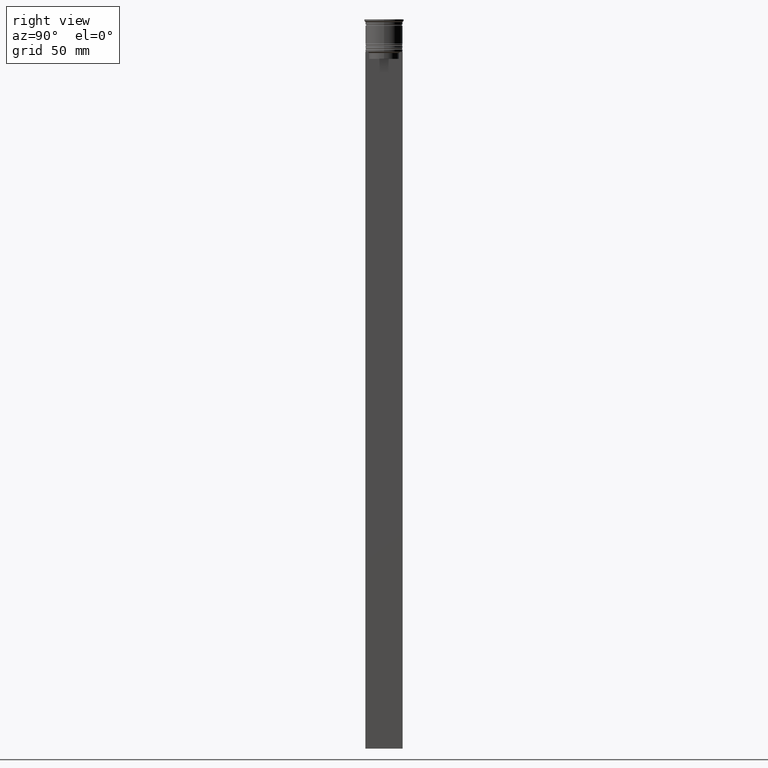
[diagram: clean part render]
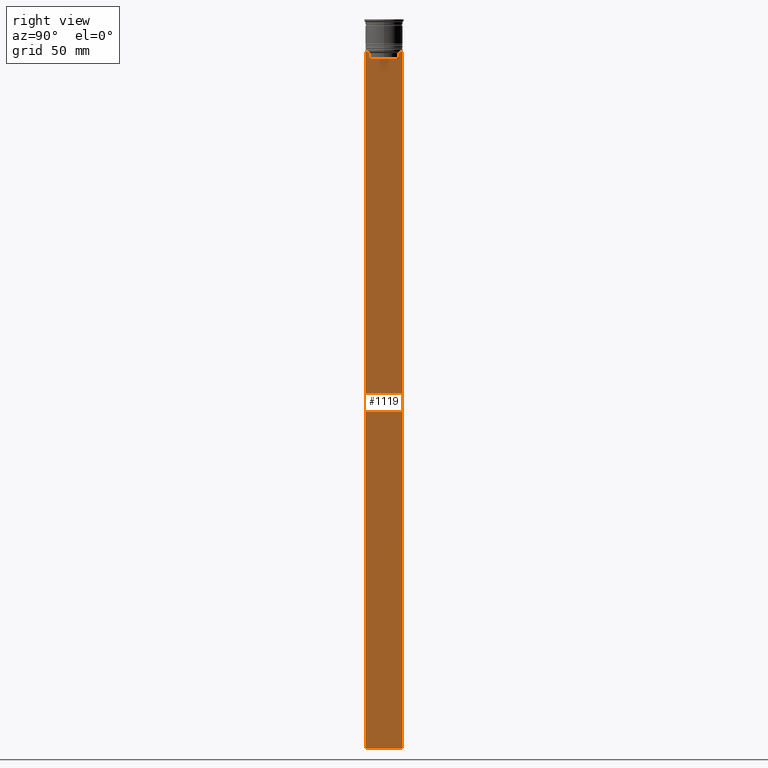
[diagram: same view with one face highlighted and labeled with its STEP entity id]
A machine part, right view. The second image highlights one B-rep face of the part: STEP entity #1119.
In plain terms, the highlighted planar face has unit normal (-1, 0, 0).
Its self-contained STEP definition (entity closure, byte-faithful):
#7 = DIRECTION ( 'NONE',  ( 0.000000000000000000, 1.000000000000000000, 0.000000000000000000 ) ) ;
#10 = DIRECTION ( 'NONE',  ( 0.000000000000000000, -1.000000000000000000, 0.000000000000000000 ) ) ;
#81 = DIRECTION ( 'NONE',  ( -0.000000000000000000, -0.000000000000000000, 1.000000000000000000 ) ) ;
#92 = VERTEX_POINT ( 'NONE', #2103 ) ;
#131 = CARTESIAN_POINT ( 'NONE',  ( 0.5000000000000001110, -8.000000000000003553, -14.00000000000000178 ) ) ;
#149 = LINE ( 'NONE', #2273, #801 ) ;
#206 = VERTEX_POINT ( 'NONE', #834 ) ;
#259 = EDGE_CURVE ( 'NONE', #1219, #950, #850, .T. ) ;
#279 = CARTESIAN_POINT ( 'NONE',  ( 0.5000000000000001110, 6.380438856379708312, -17.00000000000000000 ) ) ;
#289 = VERTEX_POINT ( 'NONE', #1675 ) ;
#337 = EDGE_CURVE ( 'NONE', #289, #206, #538, .T. ) ;
#358 = LINE ( 'NONE', #2466, #633 ) ;
#424 = CARTESIAN_POINT ( 'NONE',  ( 0.5000000000000001110, 7.999999999999996447, 2.031219541881394530 ) ) ;
#441 = VECTOR ( 'NONE', #707, 1000.000000000000000 ) ;
#468 = VECTOR ( 'NONE', #10, 1000.000000000000000 ) ;
#485 = CARTESIAN_POINT ( 'NONE',  ( 0.5000000000000001110, -6.380438856379708312, -14.50000000000000000 ) ) ;
#514 = VECTOR ( 'NONE', #7, 1000.000000000000000 ) ;
#527 = VERTEX_POINT ( 'NONE', #1619 ) ;
#531 = FACE_OUTER_BOUND ( 'NONE', #670, .T. ) ;
#538 = LINE ( 'NONE', #131, #752 ) ;
#540 = CARTESIAN_POINT ( 'NONE',  ( 0.5000000000000001110, -8.000000000000003553, -14.00000000000000178 ) ) ;
#605 = ORIENTED_EDGE ( 'NONE', *, *, #259, .T. ) ;
#633 = VECTOR ( 'NONE', #749, 1000.000000000000000 ) ;
#662 = EDGE_CURVE ( 'NONE', #92, #1219, #358, .T. ) ;
#670 = EDGE_LOOP ( 'NONE', ( #605, #1646, #1725, #2014, #2156, #2461, #809, #1730, #1622, #1600, #973, #1330 ) ) ;
#677 = AXIS2_PLACEMENT_3D ( 'NONE', #2478, #1085, #2055 ) ;
#707 = DIRECTION ( 'NONE',  ( 0.000000000000000000, 0.000000000000000000, -1.000000000000000000 ) ) ;
#735 = CARTESIAN_POINT ( 'NONE',  ( 0.5000000000000001110, 6.380438856379708312, -14.50000000000000000 ) ) ;
#749 = DIRECTION ( 'NONE',  ( 0.000000000000000000, -1.000000000000000000, 0.000000000000000000 ) ) ;
#752 = VECTOR ( 'NONE', #1255, 1000.000000000000000 ) ;
#778 = VERTEX_POINT ( 'NONE', #1143 ) ;
#801 = VECTOR ( 'NONE', #1297, 1000.000000000000000 ) ;
#809 = ORIENTED_EDGE ( 'NONE', *, *, #2424, .T. ) ;
#832 = EDGE_CURVE ( 'NONE', #1740, #2356, #1388, .T. ) ;
#834 = CARTESIAN_POINT ( 'NONE',  ( 0.5000000000000001110, -8.000000000000003553, -14.00000000000000178 ) ) ;
#850 = LINE ( 'NONE', #1602, #1307 ) ;
#886 = VECTOR ( 'NONE', #81, 1000.000000000000000 ) ;
#892 = CARTESIAN_POINT ( 'NONE',  ( 0.5000000000000001110, 6.881860213634098500, -14.00000000000000178 ) ) ;
#901 = CARTESIAN_POINT ( 'NONE',  ( 0.5000000000000001110, -8.000000000000003553, 2.031219541881394530 ) ) ;
#923 = LINE ( 'NONE', #540, #2120 ) ;
#947 = PLANE ( 'NONE',  #677 ) ;
#950 = VERTEX_POINT ( 'NONE', #892 ) ;
#973 = ORIENTED_EDGE ( 'NONE', *, *, #1590, .F. ) ;
#1038 = VECTOR ( 'NONE', #1717, 1000.000000000000000 ) ;
#1047 = EDGE_CURVE ( 'NONE', #1824, #1740, #149, .T. ) ;
#1076 = B_SPLINE_CURVE_WITH_KNOTS ( 'NONE', 3,
 ( #2463, #1101, #1861, #735 ),
 .UNSPECIFIED., .F., .F.,
 ( 4, 4 ),
 ( 0.01172465562756038263, 0.01243276816391822651 ),
 .UNSPECIFIED. ) ;
#1085 = DIRECTION ( 'NONE',  ( -1.000000000000000000, 0.000000000000000000, 0.000000000000000000 ) ) ;
#1101 = CARTESIAN_POINT ( 'NONE',  ( 0.5000000000000001110, 6.714736947114692711, -14.16668390704818847 ) ) ;
#1119 = ADVANCED_FACE ( 'NONE', ( #531 ), #947, .F. ) ;
#1128 = CARTESIAN_POINT ( 'NONE',  ( 0.5000000000000001110, -6.547597841511247019, -14.33335192438652150 ) ) ;
#1141 = LINE ( 'NONE', #901, #441 ) ;
#1143 = CARTESIAN_POINT ( 'NONE',  ( 0.5000000000000001110, -8.000000000000003553, -314.0000000000000000 ) ) ;
#1219 = VERTEX_POINT ( 'NONE', #1770 ) ;
#1255 = DIRECTION ( 'NONE',  ( 0.000000000000000000, -1.000000000000000000, 0.000000000000000000 ) ) ;
#1275 = EDGE_CURVE ( 'NONE', #778, #527, #1731, .T. ) ;
#1297 = DIRECTION ( 'NONE',  ( 0.000000000000000000, 0.000000000000000000, -1.000000000000000000 ) ) ;
#1305 = DIRECTION ( 'NONE',  ( 0.000000000000000000, -1.000000000000000000, 0.000000000000000000 ) ) ;
#1307 = VECTOR ( 'NONE', #2375, 1000.000000000000000 ) ;
#1330 = ORIENTED_EDGE ( 'NONE', *, *, #662, .T. ) ;
#1388 = LINE ( 'NONE', #1944, #468 ) ;
#1418 = CARTESIAN_POINT ( 'NONE',  ( 0.5000000000000001110, -6.380438856379708312, 0.000000000000000000 ) ) ;
#1579 = VERTEX_POINT ( 'NONE', #2131 ) ;
#1590 = EDGE_CURVE ( 'NONE', #92, #527, #1901, .T. ) ;
#1600 = ORIENTED_EDGE ( 'NONE', *, *, #1275, .T. ) ;
#1602 = CARTESIAN_POINT ( 'NONE',  ( 0.5000000000000001110, -8.000000000000003553, -14.00000000000000178 ) ) ;
#1610 = LINE ( 'NONE', #1418, #886 ) ;
#1619 = CARTESIAN_POINT ( 'NONE',  ( 0.5000000000000001110, 7.999999999999996447, -314.0000000000000000 ) ) ;
#1622 = ORIENTED_EDGE ( 'NONE', *, *, #2473, .T. ) ;
#1641 = B_SPLINE_CURVE_WITH_KNOTS ( 'NONE', 3,
 ( #1688, #1128, #1844, #2229 ),
 .UNSPECIFIED., .F., .F.,
 ( 4, 4 ),
 ( 0.02996184199614751464, 0.03067452609193705923 ),
 .UNSPECIFIED. ) ;
#1646 = ORIENTED_EDGE ( 'NONE', *, *, #1895, .T. ) ;
#1658 = CARTESIAN_POINT ( 'NONE',  ( 0.5000000000000001110, 6.380438856379708312, -14.50000000000000000 ) ) ;
#1675 = CARTESIAN_POINT ( 'NONE',  ( 0.5000000000000001110, -7.884161337770806632, -14.00000000000000178 ) ) ;
#1688 = CARTESIAN_POINT ( 'NONE',  ( 0.5000000000000001110, -6.380438856379708312, -14.50000000000000000 ) ) ;
#1717 = DIRECTION ( 'NONE',  ( 0.000000000000000000, 0.000000000000000000, -1.000000000000000000 ) ) ;
#1725 = ORIENTED_EDGE ( 'NONE', *, *, #1047, .T. ) ;
#1730 = ORIENTED_EDGE ( 'NONE', *, *, #337, .T. ) ;
#1731 = LINE ( 'NONE', #1741, #514 ) ;
#1740 = VERTEX_POINT ( 'NONE', #279 ) ;
#1741 = CARTESIAN_POINT ( 'NONE',  ( 0.5000000000000001110, -8.000000000000003553, -314.0000000000000000 ) ) ;
#1770 = CARTESIAN_POINT ( 'NONE',  ( 0.5000000000000001110, 7.884161337770806632, -14.00000000000000178 ) ) ;
#1824 = VERTEX_POINT ( 'NONE', #1658 ) ;
#1844 = CARTESIAN_POINT ( 'NONE',  ( 0.5000000000000001110, -6.714736947305993908, -14.16668390685738821 ) ) ;
#1861 = CARTESIAN_POINT ( 'NONE',  ( 0.5000000000000001110, 6.547597841304911626, -14.33335192459222718 ) ) ;
#1890 = CARTESIAN_POINT ( 'NONE',  ( 0.5000000000000001110, -6.380438856379708312, -17.00000000000000000 ) ) ;
#1892 = EDGE_CURVE ( 'NONE', #2148, #1579, #1641, .T. ) ;
#1895 = EDGE_CURVE ( 'NONE', #950, #1824, #1076, .T. ) ;
#1901 = LINE ( 'NONE', #424, #1038 ) ;
#1944 = CARTESIAN_POINT ( 'NONE',  ( 0.5000000000000001110, 6.399999999999999467, -17.00000000000000000 ) ) ;
#2014 = ORIENTED_EDGE ( 'NONE', *, *, #832, .T. ) ;
#2048 = EDGE_CURVE ( 'NONE', #2356, #2148, #1610, .T. ) ;
#2055 = DIRECTION ( 'NONE',  ( 0.000000000000000000, 0.000000000000000000, 1.000000000000000000 ) ) ;
#2103 = CARTESIAN_POINT ( 'NONE',  ( 0.5000000000000001110, 7.999999999999996447, -14.00000000000000178 ) ) ;
#2120 = VECTOR ( 'NONE', #1305, 1000.000000000000000 ) ;
#2131 = CARTESIAN_POINT ( 'NONE',  ( 0.5000000000000001110, -6.881860213634098500, -14.00000000000000178 ) ) ;
#2148 = VERTEX_POINT ( 'NONE', #485 ) ;
#2156 = ORIENTED_EDGE ( 'NONE', *, *, #2048, .T. ) ;
#2229 = CARTESIAN_POINT ( 'NONE',  ( 0.5000000000000001110, -6.881860213634098500, -14.00000000000000178 ) ) ;
#2273 = CARTESIAN_POINT ( 'NONE',  ( 0.5000000000000001110, 6.380438856379708312, 0.000000000000000000 ) ) ;
#2356 = VERTEX_POINT ( 'NONE', #1890 ) ;
#2375 = DIRECTION ( 'NONE',  ( 0.000000000000000000, -1.000000000000000000, 0.000000000000000000 ) ) ;
#2424 = EDGE_CURVE ( 'NONE', #1579, #289, #923, .T. ) ;
#2461 = ORIENTED_EDGE ( 'NONE', *, *, #1892, .T. ) ;
#2463 = CARTESIAN_POINT ( 'NONE',  ( 0.5000000000000001110, 6.881860213634098500, -14.00000000000000178 ) ) ;
#2466 = CARTESIAN_POINT ( 'NONE',  ( 0.5000000000000001110, -8.000000000000003553, -14.00000000000000178 ) ) ;
#2473 = EDGE_CURVE ( 'NONE', #206, #778, #1141, .T. ) ;
#2478 = CARTESIAN_POINT ( 'NONE',  ( 0.5000000000000001110, -8.000000000000003553, 2.031219541881394530 ) ) ;